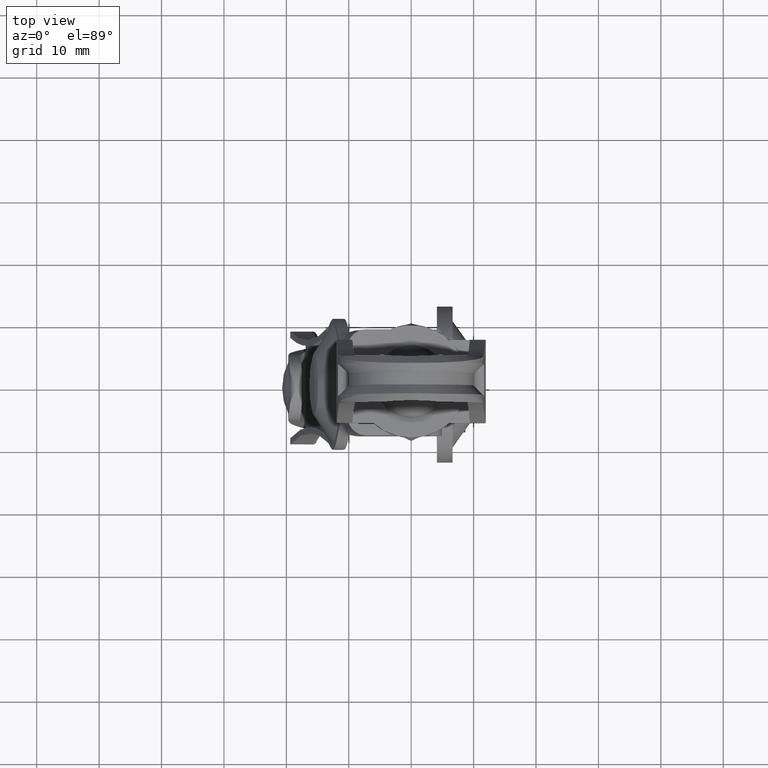
[diagram: clean part render]
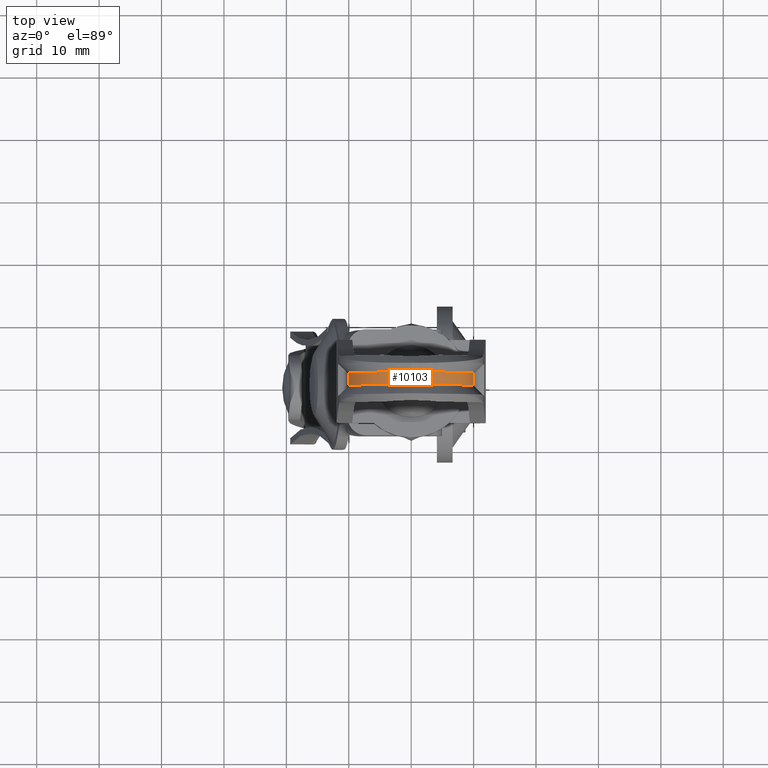
[diagram: same view with one face highlighted and labeled with its STEP entity id]
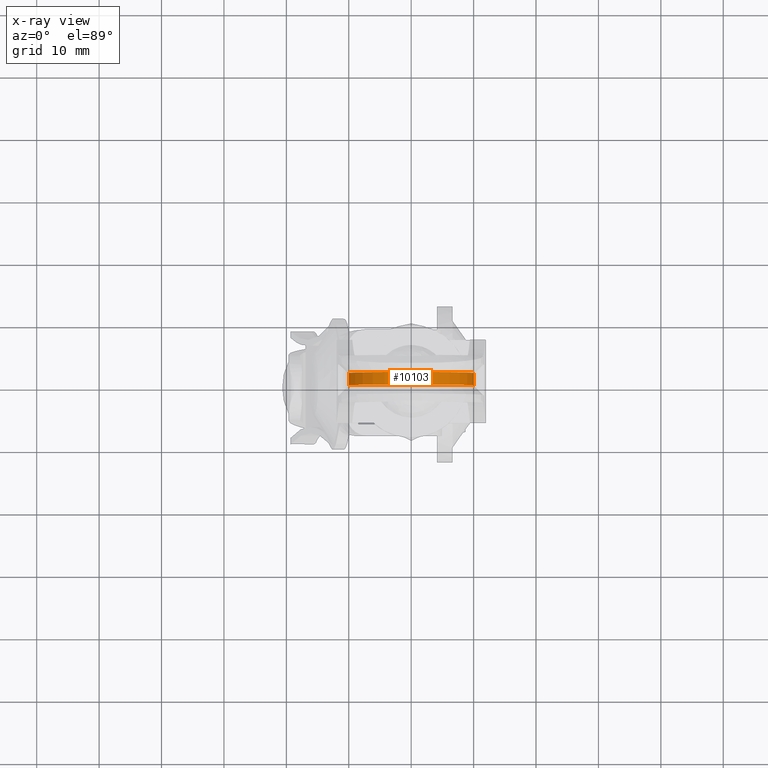
[diagram: x-ray of the same camera — body ghosted, the highlighted face saturated]
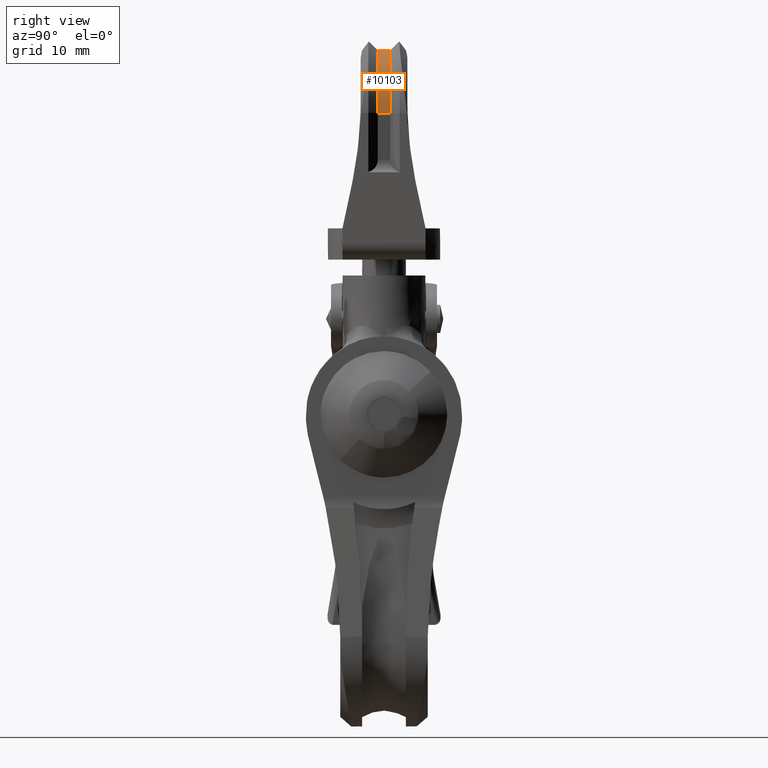
[diagram: same view with one face highlighted and labeled with its STEP entity id]
A machine part, top view. The second image highlights one B-rep face of the part: STEP entity #10103.
The next image is the same camera in x-ray: the body ghosted, the highlighted face saturated — about 0% of this face is hidden behind the body in this view.
A second angle (right view) of the same face is appended — the face is thin or edge-on in the first view.
In plain terms, the highlighted face is a freeform B-spline surface patch.
Its self-contained STEP definition (entity closure, byte-faithful):
#8017=CARTESIAN_POINT('',(9.999999680840020,-1.000008319151258,48.283042500233201));
#8018=VERTEX_POINT('',#8017);
#8025=CARTESIAN_POINT('',(9.999999680840029,0.999991680848744,48.283042500233201));
#8026=VERTEX_POINT('',#8025);
#8032=CARTESIAN_POINT('',(9.999999680840029,0.999991680848744,48.283042500233201));
#8033=CARTESIAN_POINT('',(9.999999680840020,-1.000008319151258,48.283042500233201));
#8034=QUASI_UNIFORM_CURVE('',1,(#8032,#8033),.UNSPECIFIED.,.F.,.U.);
#8035=EDGE_CURVE('',#8026,#8018,#8034,.T.);
#8127=CARTESIAN_POINT('',(-10.0,1.0,48.283035000000098));
#8128=VERTEX_POINT('',#8127);
#8149=CARTESIAN_POINT('',(-10.0,-0.999999999999986,48.283035000000098));
#8150=VERTEX_POINT('',#8149);
#8156=CARTESIAN_POINT('',(-10.0,-0.999999999999986,48.283035000000098));
#8157=CARTESIAN_POINT('',(-10.0,1.0,48.283035000000098));
#8158=QUASI_UNIFORM_CURVE('',1,(#8156,#8157),.UNSPECIFIED.,.F.,.U.);
#8159=EDGE_CURVE('',#8150,#8128,#8158,.T.);
#8230=CARTESIAN_POINT('',(0.0,1.000000000000014,58.283035000000098));
#8231=VERTEX_POINT('',#8230);
#8250=CARTESIAN_POINT('',(-10.0,1.0,48.283035000000098));
#8251=CARTESIAN_POINT('',(-10.000341931112899,1.000000000000001,49.183007427178438));
#8252=CARTESIAN_POINT('',(-9.805324326409560,1.000000000000007,50.614524346592852));
#8253=CARTESIAN_POINT('',(-9.102228025747877,1.000000000000009,52.542166201259789));
#8254=CARTESIAN_POINT('',(-8.303993049852055,1.000000000000007,53.931252669534693));
#8255=CARTESIAN_POINT('',(-7.245582035284569,1.000000000000025,55.237195353043077));
#8256=CARTESIAN_POINT('',(-6.113154863955728,1.000000000000011,56.250976556002293));
#8257=CARTESIAN_POINT('',(-4.595011733706926,1.000000000000019,57.225482330294632));
#8258=CARTESIAN_POINT('',(-2.617856392532645,1.000000000000011,58.044570501684817));
#8259=CARTESIAN_POINT('',(-0.940863041580637,1.000000000000017,58.283387594928200));
#8260=CARTESIAN_POINT('',(0.0,1.000000000000014,58.283035000000098));
#8261=B_SPLINE_CURVE_WITH_KNOTS('',3,(#8250,#8251,#8252,#8253,#8254,#8255,#8256,#8257,#8258,#8259,#8260),.UNSPECIFIED.,.F.,.U.,(4,1,1,1,1,1,1,1,4),(0.000000236027857,2.699801770183480,4.295178981710775,6.136006641683801,7.485881808457396,9.326656660713670,10.676559976965651,12.885532889233779,15.708061828770290),.UNSPECIFIED.);
#8262=EDGE_CURVE('',#8128,#8231,#8261,.T.);
#10029=CARTESIAN_POINT('',(0.0,-0.999999999999986,58.283035000000098));
#10030=VERTEX_POINT('',#10029);
#10031=CARTESIAN_POINT('',(9.999999680840020,-1.000008319151258,48.283042500233201));
#10032=CARTESIAN_POINT('',(10.000198148799781,-1.000007978923130,49.101180472747480));
#10033=CARTESIAN_POINT('',(9.798088345305953,-1.000007214278998,50.737344861783200));
#10034=CARTESIAN_POINT('',(8.982376903142042,-1.000005995254496,52.852279085163701));
#10035=CARTESIAN_POINT('',(7.670832034554820,-1.000004622247706,54.841566984353904));
#10036=CARTESIAN_POINT('',(6.015660238203564,-1.000003286234191,56.398292480412849));
#10037=CARTESIAN_POINT('',(4.219949954657744,-1.000002122354997,57.400652817421580));
#10038=CARTESIAN_POINT('',(2.290553311622033,-1.000001032634857,58.091041425595407));
#10039=CARTESIAN_POINT('',(0.940895891677825,-1.000000391207956,58.283431919944391));
#10040=CARTESIAN_POINT('',(0.0,-0.999999999999986,58.283035000000098));
#10041=B_SPLINE_CURVE_WITH_KNOTS('',3,(#10031,#10032,#10033,#10034,#10035,#10036,#10037,#10038,#10039,#10040),.UNSPECIFIED.,.F.,.U.,(4,1,1,1,1,1,1,4),(0.000000237291138,2.454383728931417,4.908774617260759,6.749567368678243,9.572057267350944,11.658321663971130,12.885529172839149,15.708057300034920),.UNSPECIFIED.);
#10042=EDGE_CURVE('',#8018,#10030,#10041,.T.);
#10052=CARTESIAN_POINT('',(9.996573446085979,-1.050008527130039,48.021273014584622));
#10053=CARTESIAN_POINT('',(9.996573446085979,1.051250213178267,48.021273014584622));
#10054=CARTESIAN_POINT('',(10.267635916981707,-1.050008527130039,58.373027852040494));
#10055=CARTESIAN_POINT('',(10.267635916981707,1.051250213178267,58.373027852040494));
#10056=CARTESIAN_POINT('',(-0.087272854931456,-1.050008527130039,58.282654165187942));
#10057=CARTESIAN_POINT('',(-0.087272854931456,1.051250213178267,58.282654165187942));
#10058=CARTESIAN_POINT('',(-10.442181626844613,-1.050008527130039,58.192280478335384));
#10059=CARTESIAN_POINT('',(-10.442181626844613,1.051250213178267,58.192280478335384));
#10060=CARTESIAN_POINT('',(-9.990481888660185,-1.050008527130039,47.846833633252103));
#10061=CARTESIAN_POINT('',(-9.990481888660185,1.051250213178267,47.846833633252103));
#10069=(BOUNDED_SURFACE()B_SPLINE_SURFACE(1,2,((#10052,#10054,#10056,#10058,#10060),(#10053,#10055,#10057,#10059,#10061)),.UNSPECIFIED.,.F.,.F.,.U.)B_SPLINE_SURFACE_WITH_KNOTS((2,2),(3,2,3),(0.0,2.101258740308307),(0.0,16.978992648384189,33.957985296768392),.UNSPECIFIED.)GEOMETRIC_REPRESENTATION_ITEM()RATIONAL_B_SPLINE_SURFACE(((1.0,0.694658370458997,1.0,0.694658370458997,1.0),(1.0,0.694658370458997,1.0,0.694658370458997,1.0)))REPRESENTATION_ITEM('')SURFACE());
#10070=ORIENTED_EDGE('',*,*,#8035,.F.);
#10071=CARTESIAN_POINT('',(9.999999680840029,0.999991680848744,48.283042500233201));
#10072=CARTESIAN_POINT('',(10.000065947587670,0.999991970077180,48.978440349215397));
#10073=CARTESIAN_POINT('',(9.837364222356396,0.999992684348751,50.532912615106710));
#10074=CARTESIAN_POINT('',(9.127244279216551,0.999993821541931,52.556708432989517));
#10075=CARTESIAN_POINT('',(7.985550742912863,0.999995067020939,54.409259371879088));
#10076=CARTESIAN_POINT('',(6.473131288046924,0.999996373487202,56.037703027093372));
#10077=CARTESIAN_POINT('',(4.466240575269215,0.999997751381709,57.343395087872793));
#10078=CARTESIAN_POINT('',(2.208875846402537,0.999999013239986,58.119651244312251));
#10079=CARTESIAN_POINT('',(0.736313984892764,0.999999693773520,58.283153071028437));
#10080=CARTESIAN_POINT('',(0.0,1.000000000000014,58.283035000000098));
#10081=B_SPLINE_CURVE_WITH_KNOTS('',3,(#10071,#10072,#10073,#10074,#10075,#10076,#10077,#10078,#10079,#10080),.UNSPECIFIED.,.F.,.U.,(4,1,1,1,1,1,1,4),(0.000000237288193,2.086224365047507,4.663342069536450,6.381407222930740,8.590340090716424,11.290155692277731,13.499125333018171,15.708057300034920),.UNSPECIFIED.);
#10082=EDGE_CURVE('',#8026,#8231,#10081,.T.);
#10083=ORIENTED_EDGE('',*,*,#10082,.T.);
#10084=ORIENTED_EDGE('',*,*,#8262,.F.);
#10085=ORIENTED_EDGE('',*,*,#8159,.F.);
#10086=CARTESIAN_POINT('',(-10.0,-0.999999999999986,48.283035000000098));
#10087=CARTESIAN_POINT('',(-10.000341931112899,-0.999999999999985,49.183007427178438));
#10088=CARTESIAN_POINT('',(-9.805324326409560,-0.999999999999987,50.614524346592852));
#10089=CARTESIAN_POINT('',(-9.102228025747877,-0.999999999999986,52.542166201259789));
#10090=CARTESIAN_POINT('',(-8.303993049852055,-0.999999999999981,53.931252669534693));
#10091=CARTESIAN_POINT('',(-7.245582035284569,-0.999999999999996,55.237195353043077));
#10092=CARTESIAN_POINT('',(-6.113154863955728,-0.999999999999981,56.250976556002293));
#10093=CARTESIAN_POINT('',(-4.595011733706926,-0.999999999999988,57.225482330294632));
#10094=CARTESIAN_POINT('',(-2.617856392532645,-0.999999999999981,58.044570501684817));
#10095=CARTESIAN_POINT('',(-0.940863041580637,-0.999999999999988,58.283387594928200));
#10096=CARTESIAN_POINT('',(0.0,-0.999999999999986,58.283035000000098));
#10097=B_SPLINE_CURVE_WITH_KNOTS('',3,(#10086,#10087,#10088,#10089,#10090,#10091,#10092,#10093,#10094,#10095,#10096),.UNSPECIFIED.,.F.,.U.,(4,1,1,1,1,1,1,1,4),(0.000000236027857,2.699801770183480,4.295178981710775,6.136006641683801,7.485881808457396,9.326656660713670,10.676559976965651,12.885532889233779,15.708061828770290),.UNSPECIFIED.);
#10098=EDGE_CURVE('',#8150,#10030,#10097,.T.);
#10099=ORIENTED_EDGE('',*,*,#10098,.T.);
#10100=ORIENTED_EDGE('',*,*,#10042,.F.);
#10101=EDGE_LOOP('',(#10070,#10083,#10084,#10085,#10099,#10100));
#10102=FACE_OUTER_BOUND('',#10101,.T.);
#10103=ADVANCED_FACE('',(#10102),#10069,.T.);